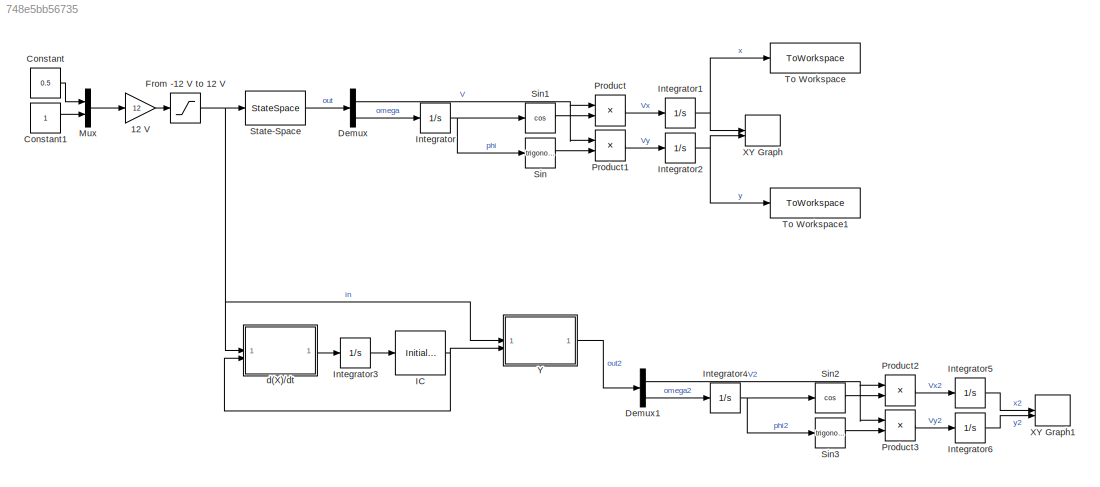
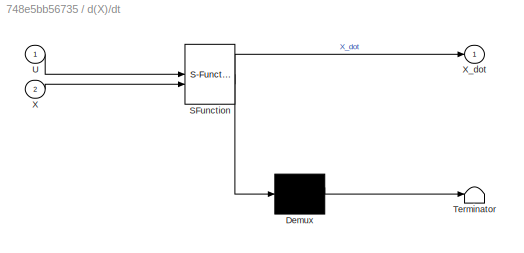
MODEL slx_748e5bb56735
KIND model
CONFIG AbsTol = auto
CONFIG EnableMultiTasking = off
CONFIG FixedStep = 0.01
CONFIG MaxStep = 0.05
CONFIG MinStep = auto
CONFIG RelTol = 1e-3
CONFIG SampleTimeConstraint = Unconstrained
CONFIG SolverName = VariableStepAuto
CONFIG StartTime = 0.0
CONFIG StopTime = 10
BLOCK [Gain] 12 V
  Gain = 12
BLOCK [Constant] Constant
  Value = 0.5
BLOCK [Constant] Constant1
BLOCK [Demux] Demux
  Outputs = 2
BLOCK [Demux] Demux1
  Outputs = 2
BLOCK [Saturate] From -12 V to 12 V
  LowerLimit = -12
  UpperLimit = 12
BLOCK [InitialCondition] IC
  Value = [0; 0; 0; 0;]
BLOCK [Integrator] Integrator
BLOCK [Integrator] Integrator1
BLOCK [Integrator] Integrator2
BLOCK [Integrator] Integrator3
BLOCK [Integrator] Integrator4
BLOCK [Integrator] Integrator5
BLOCK [Integrator] Integrator6
BLOCK [Mux] Mux
  DisplayOption = bar
  Inputs = 2
BLOCK [Product] Product
BLOCK [Product] Product1
BLOCK [Product] Product2
BLOCK [Product] Product3
BLOCK [Trigonometry] Sin
BLOCK [Trigonometry] Sin1
  Operator = cos
BLOCK [Trigonometry] Sin2
  Operator = cos
BLOCK [Trigonometry] Sin3
BLOCK [StateSpace] State-Space
  A = A
  B = B
  C = C
  D = D
  InitialCondition = 0
BLOCK [ToWorkspace] To Workspace
  FixptAsFi = on
  MaxDataPoints = inf
  SampleTime = -1
  VariableName = x_out
BLOCK [ToWorkspace] To Workspace1
  FixptAsFi = on
  MaxDataPoints = inf
  SampleTime = -1
  VariableName = y_out
BLOCK [Record] XY Graph
  CompatibilityTag = XY
  FileSettingsInternal = {"entries":[{"content":{"excelSettings":{"content":{},"type":"Streamout.ExcelSettings"}},"type":"Streamout.FileSettingStorage","uuid":"9bfdd3a5-d0fc-4e1c-b886-b752cda4558f"}],"packageUris":["http://schema.mathworks.com/mf0/streamout_blocks/R2020a"],"version":"1.0"}
  Layout = [1 1]
  SignalsInternal = {"entries":[{"content":{"signals":[{"content":{"blockPath":["StateSpaceModelDemo/XY Graph"],"channel":[],"dimensions":[1],"domain":"StateSpaceModelDemo/XY Graph","lineColor":"#a2142f","plots":[1],"port":1,"sid":[""],"signalID":3152,"signalName":"x"},"type":"RecordBlkView.Signal","uuid":"5904ecfd-512f-4a34-870d-ba72ec4437e8"},{"content":{"blockPath":["StateSpaceModelDemo/XY Graph"],"channel":[],"di...<+395ch>
  VisualizationBindings = {"xyplotplugin":{"info":[{"series":[{"bindingParametersList":[{"parameter":"X-Axis","signalID":3152,"signalName":"x"},{"parameter":"Y-Axis","signalID":3156,"signalName":"y"}],"seriesID":46448}],"subplotID":1}]}}
BLOCK [Record] XY Graph1
  CompatibilityTag = XY
  FileSettingsInternal = {"entries":[{"content":{"excelSettings":{"content":{},"type":"Streamout.ExcelSettings"}},"type":"Streamout.FileSettingStorage","uuid":"8dd78601-c387-40cb-a46c-00bc69ac2661"}],"packageUris":["http://schema.mathworks.com/mf0/streamout_blocks/R2020a"],"version":"1.0"}
  Layout = [1 1]
  SignalsInternal = {"entries":[{"content":{"signals":[{"content":{"blockPath":["StateSpaceModelDemo/XY Graph1"],"channel":[],"dimensions":[1,1],"domain":"StateSpaceModelDemo/XY Graph1","lineColor":"#a2142f","plots":[1],"port":1,"sid":[""],"signalID":3160,"signalName":"x2"},"type":"RecordBlkView.Signal","uuid":"411b24f0-bd24-4970-86cc-936a57cea44d"},{"content":{"blockPath":["StateSpaceModelDemo/XY Graph1"],"channel":...<+405ch>
  VisualizationBindings = {"xyplotplugin":{"info":[{"series":[{"bindingParametersList":[{"parameter":"X-Axis","signalID":3160,"signalName":"x2"},{"parameter":"Y-Axis","signalID":3164,"signalName":"y2"}],"seriesID":30010}],"subplotID":1}]}}
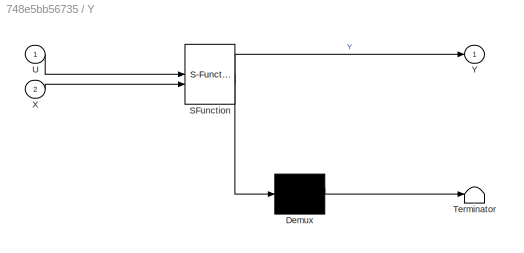
BLOCK [SubSystem] Y
  ErrorFcn = Stateflow.Translate.translate
  LibrarySourceBlock = simulink/User-Defined\nFunctions/MATLAB Function
  PermitHierarchicalResolution = ExplicitOnly
  SFBlockType = MATLAB Function
  TreatAsAtomicUnit = on
BLOCK [Demux] Y/ Demux 
  Outputs = 1
BLOCK [S-Function] Y/ SFunction 
  EnableBusSupport = on
  FunctionName = sf_sfun
  PortCounts = [2 2]
  SFcnIsStateOwnerBlock = off
  SFunctionDeploymentMode = off
  Tag = Stateflow S-Function 1
BLOCK [Terminator] Y/ Terminator 
BLOCK [Inport] Y/U
BLOCK [Inport] Y/X
  Port = 2
BLOCK [Outport] Y/Y
BLOCK [SubSystem] d(X)//dt
  ErrorFcn = Stateflow.Translate.translate
  LibrarySourceBlock = simulink/User-Defined\nFunctions/MATLAB Function
  PermitHierarchicalResolution = ExplicitOnly
  SFBlockType = MATLAB Function
  TreatAsAtomicUnit = on
BLOCK [Demux] d(X)//dt/ Demux 
  Outputs = 1
BLOCK [S-Function] d(X)//dt/ SFunction 
  EnableBusSupport = on
  FunctionName = sf_sfun
  PortCounts = [2 2]
  SFcnIsStateOwnerBlock = off
  SFunctionDeploymentMode = off
  Tag = Stateflow S-Function 2
BLOCK [Terminator] d(X)//dt/ Terminator 
BLOCK [Inport] d(X)//dt/U
BLOCK [Inport] d(X)//dt/X
  Port = 2
BLOCK [Outport] d(X)//dt/X_dot
LINE 12 V:1 -> From -12 V to 12 V:1
LINE Constant1:1 -> Mux:2
LINE Constant:1 -> Mux:1
NET Demux1:1 -> Product2:1, Product3:1
LINE Demux1:2 -> Integrator4:1
NET Demux:1 -> Product1:1, Product:1
LINE Demux:2 -> Integrator:1
NET From -12 V to 12 V:1 -> State-Space:1, Y:1, d(X)//dt:1
NET IC:1 -> Y:2, d(X)//dt:2
NET Integrator1:1 -> To Workspace:1, XY Graph:1
NET Integrator2:1 -> To Workspace1:1, XY Graph:2
LINE Integrator3:1 -> IC:1
NET Integrator4:1 -> Sin2:1, Sin3:1
LINE Integrator5:1 -> XY Graph1:1
LINE Integrator6:1 -> XY Graph1:2
NET Integrator:1 -> Sin1:1, Sin:1
LINE Mux:1 -> 12 V:1
LINE Product1:1 -> Integrator2:1
LINE Product2:1 -> Integrator5:1
LINE Product3:1 -> Integrator6:1
LINE Product:1 -> Integrator1:1
LINE Sin1:1 -> Product:2
LINE Sin2:1 -> Product2:2
LINE Sin3:1 -> Product3:2
LINE Sin:1 -> Product1:2
LINE State-Space:1 -> Demux:1
LINE Y:1 -> Demux1:1
LINE d(X)//dt:1 -> Integrator3:1
note: NET lines group one-source signal fan-out (src -> all destinations, sorted); 1:1 wires keep LINE
CHART d(X)//dt states=1 transitions=1
  STATE_LABEL 'eML_blk_kernel()'
  STATE_LABEL 'SCRIPT:\nfunction X_dot = fcn(U, X)\n\nRwheel = 0.05; % m\nTr = 0.1; % m\nJsum = 0.4; % kg*m^2\nR = 10; % Om\nL = 650e-6; % H\nKm = 0.17;\nKomega = 0.17;\n\nA = [0, 0, 1, 0;\n     0, 0, 0, 1;\n    -Km*Komega/(L*Jsum), 0, -R/L, 0;\n    0, -Km*Komega/(L*Jsum), 0, -R/L];\n\nB = [0, 0;\n     0, 0;\n    Rwheel*Km/(L*Jsum), 0;\n    0, Rwheel*Km/(L*Jsum)];\n\n%%\nX_dot = A*X + B*U;\nend\n'
CHART Y states=1 transitions=1
  STATE_LABEL 'eML_blk_kernel()'
  STATE_LABEL 'SCRIPT:\nfunction Y = fcn(U, X)\n\nRwheel = 0.05; % m\nTr = 0.1; % m\nJsum = 0.4; % kg*m^2\nR = 10; % Om\nL = 650e-6; % H\nKm = 0.17;\nKomega = 0.17;\n\nC = [1/2, 1/2, 0, 0;\n    -1/Tr, 1/Tr, 0, 0];\n\nD = [0, 0;\n     0, 0];\n\n%%\nY = C*X + D*U;\nend\n'
CHART  states=0 transitions=0
CHART  states=0 transitions=0
